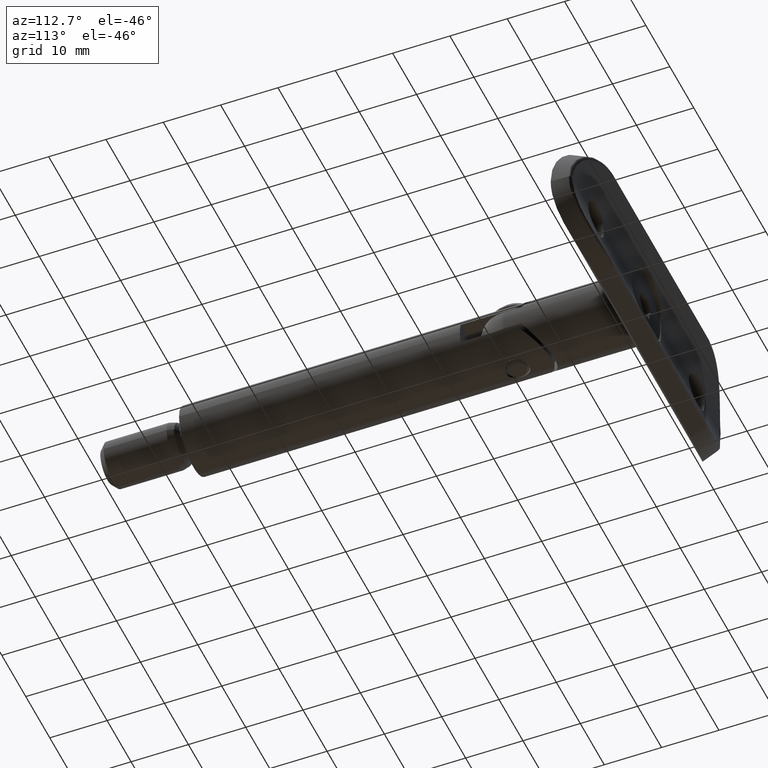
[diagram: clean part render]
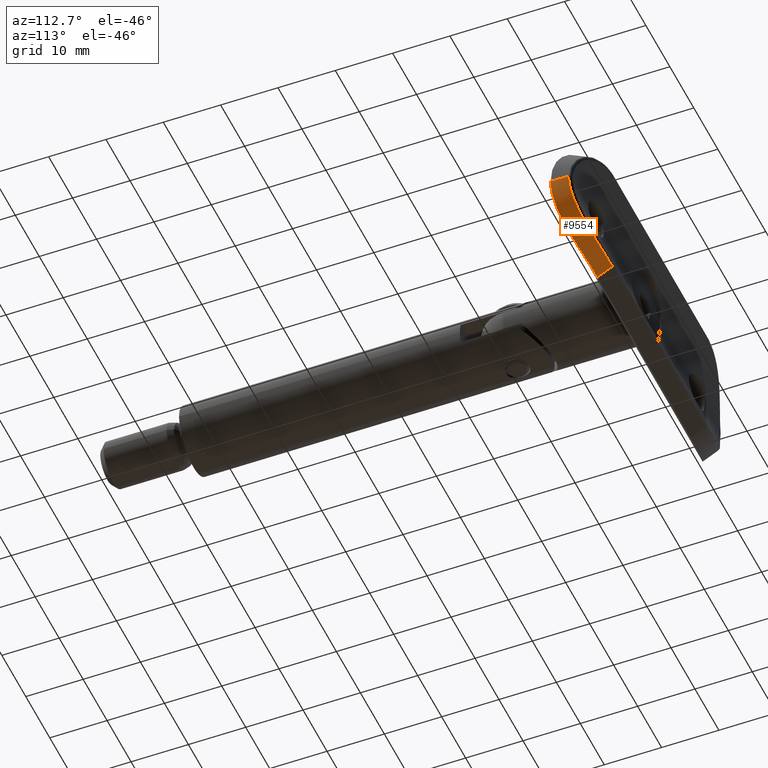
[diagram: same view with one face highlighted and labeled with its STEP entity id]
A machine part, auxiliary view. The second image highlights one B-rep face of the part: STEP entity #9554.
In plain terms, the highlighted cylindrical surface (partial cylindrical patch) has radius 12 mm, axis along (0, -0.8741, -0.4858).
Its self-contained STEP definition (entity closure, byte-faithful):
#51 = CARTESIAN_POINT ( 'NONE',  ( -8.732631405510836942, 1.380105572080482013, -26.13792390336022819 ) ) ;
#174 = CARTESIAN_POINT ( 'NONE',  ( -3.589126953104938345, -0.1425766935507997157, -30.53490663537369443 ) ) ;
#508 = CARTESIAN_POINT ( 'NONE',  ( -10.86687449944537320, -0.9833561896143341308, -24.95091473416315608 ) ) ;
#603 = EDGE_CURVE ( 'NONE', #6681, #3510, #830, .T. ) ;
#830 = B_SPLINE_CURVE_WITH_KNOTS ( 'NONE', 3,
 ( #1555, #12829, #12932, #12769, #2855, #14121, #2812, #508, #11573, #6658, #15321, #6920, #8195, #14395, #5557, #14232, #14282, #8084, #13193, #14445, #1870, #10683, #8030, #4526 ),
 .UNSPECIFIED., .F., .F.,
 ( 4, 2, 2, 2, 2, 2, 2, 2, 2, 2, 2, 4 ),
 ( 3.476216610979977084E-18, 0.002406580534152875320, 0.003609870801229310595, 0.004813161068305746304, 0.007219741602458626395, 0.008423031869535066440, 0.009626322136611503016, 0.01203290267076437096, 0.01443948320491723891, 0.01564277347199367202, 0.01684606373907010513, 0.01925264427322297828 ),
 .UNSPECIFIED. ) ;
#1073 = CARTESIAN_POINT ( 'NONE',  ( -4.165912745246785058E-15, -0.4701362392625519360, -31.40937530504016451 ) ) ;
#1191 = EDGE_LOOP ( 'NONE', ( #15433, #8881, #2384, #15524 ) ) ;
#1243 = CARTESIAN_POINT ( 'NONE',  ( -1.471476261503997573, -0.4031192296362751670, -31.17588060939954531 ) ) ;
#1415 = CARTESIAN_POINT ( 'NONE',  ( -0.7404109976856301234, -0.4496605161124934136, -31.31444628284844356 ) ) ;
#1555 = CARTESIAN_POINT ( 'NONE',  ( -12.00000000000000711, -0.3891176290278207661, -19.50000000000000355 ) ) ;
#1833 = CARTESIAN_POINT ( 'NONE',  ( -4.165912745246785058E-15, -0.4701362392625519360, -31.40937530504016451 ) ) ;
#1870 = CARTESIAN_POINT ( 'NONE',  ( -2.804642605329985106, -3.343479015047385428, -31.23668300403215170 ) ) ;
#2384 = ORIENTED_EDGE ( 'NONE', *, *, #6893, .T. ) ;
#2685 = CARTESIAN_POINT ( 'NONE',  ( -10.22228452745750360, 2.073518088803385950, -22.43040518664165006 ) ) ;
#2812 = CARTESIAN_POINT ( 'NONE',  ( -11.29067707203921067, -0.7689707214613790143, -23.83865606415823279 ) ) ;
#2855 = CARTESIAN_POINT ( 'NONE',  ( -11.62887820642736436, -0.5915967544966715952, -22.68293612948989946 ) ) ;
#3209 = VERTEX_POINT ( 'NONE', #7615 ) ;
#3499 = CARTESIAN_POINT ( 'NONE',  ( -12.00000000000000178, -0.3891176290278255956, -19.50000000000000000 ) ) ;
#3510 = VERTEX_POINT ( 'NONE', #13334 ) ;
#3539 = CARTESIAN_POINT ( 'NONE',  ( 10.48864014365724628, 15.37004048582994997, -19.50000000000000000 ) ) ;
#3754 = CARTESIAN_POINT ( 'NONE',  ( -5.507687913038745720, 0.2809070737397288409, -29.49489296990413578 ) ) ;
#3925 = CARTESIAN_POINT ( 'NONE',  ( -10.04062280470157731, 1.982199962630015744, -23.14366967859936253 ) ) ;
#3973 = CARTESIAN_POINT ( 'NONE',  ( -1.835189502875486767, -0.3711457551946608646, -31.09134747255644982 ) ) ;
#4112 = CYLINDRICAL_SURFACE ( 'NONE', #12550, 12.00000000000000000 ) ;
#4220 = CARTESIAN_POINT ( 'NONE',  ( -5.975428329596222389E-16, -3.499999999999999556, -31.50000000000000000 ) ) ;
#4526 = CARTESIAN_POINT ( 'NONE',  ( -5.975428329596222389E-16, -3.499999999999999556, -31.50000000000000000 ) ) ;
#4686 = DIRECTION ( 'NONE',  ( -0.4858299595141704619, -0.8740533453047700796, 0.000000000000000000 ) ) ;
#5068 = CARTESIAN_POINT ( 'NONE',  ( -2.905809991406905990, -0.2520860244392645333, -30.79258430663402279 ) ) ;
#5172 = CARTESIAN_POINT ( 'NONE',  ( -9.569349463060195404, 1.752852787617590780, -24.53899358220071747 ) ) ;
#5182 = VECTOR ( 'NONE', #5953, 1000.000000000000114 ) ;
#5233 = CARTESIAN_POINT ( 'NONE',  ( -0.3717157821171792609, -0.4643916539096182849, -31.36887278765310683 ) ) ;
#5472 = CARTESIAN_POINT ( 'NONE',  ( -3.269338926805214492E-15, -2.486856761535503946, -31.50000000000000000 ) ) ;
#5557 = CARTESIAN_POINT ( 'NONE',  ( -7.497033304171731416, -2.344925040722428022, -29.19690548182576251 ) ) ;
#5611 = EDGE_CURVE ( 'NONE', #3209, #7126, #14920, .T. ) ;
#5640 = CARTESIAN_POINT ( 'NONE',  ( -3.718901014066856788E-15, -1.475628161315674092, -31.46975366199063728 ) ) ;
#5953 = DIRECTION ( 'NONE',  ( -0.4858299595141704064, -0.8740533453047699686, -0.000000000000000000 ) ) ;
#6658 = CARTESIAN_POINT ( 'NONE',  ( -9.890151245574543282, -1.434654235787247600, -26.64699636764817114 ) ) ;
#6681 = VERTEX_POINT ( 'NONE', #10060 ) ;
#6893 = EDGE_CURVE ( 'NONE', #7126, #3510, #14852, .T. ) ;
#6920 = CARTESIAN_POINT ( 'NONE',  ( -9.174398946052685133, -1.734467328778706907, -27.58503671903728005 ) ) ;
#7126 = VERTEX_POINT ( 'NONE', #1073 ) ;
#7424 = FACE_OUTER_BOUND ( 'NONE', #1191, .T. ) ;
#7615 = CARTESIAN_POINT ( 'NONE',  ( -10.53971119023871772, 2.238077944829623078, -19.50000000000000000 ) ) ;
#7625 = CARTESIAN_POINT ( 'NONE',  ( -4.567942503128787024, 0.05582271291679522657, -30.05491169464929158 ) ) ;
#8030 = CARTESIAN_POINT ( 'NONE',  ( -0.8132883673673630964, -3.499999999999998668, -31.49999999999999289 ) ) ;
#8084 = CARTESIAN_POINT ( 'NONE',  ( -4.354802112542866865, -3.115994167807660808, -30.82274288943988338 ) ) ;
#8195 = CARTESIAN_POINT ( 'NONE',  ( -8.916507318172458341, -1.836285184458887887, -27.87664932174586241 ) ) ;
#8511 = DIRECTION ( 'NONE',  ( 0.8740533453047699686, -0.4858299595141704619, 0.000000000000000000 ) ) ;
#8733 = CARTESIAN_POINT ( 'NONE',  ( -10.53971119023871772, 2.238077944829623078, -19.50000000000000000 ) ) ;
#8791 = CARTESIAN_POINT ( 'NONE',  ( -8.538757616669148121, 1.298744972214026960, -26.44274779239511375 ) ) ;
#8881 = ORIENTED_EDGE ( 'NONE', *, *, #5611, .T. ) ;
#8894 = CARTESIAN_POINT ( 'NONE',  ( -9.269901498195489253, 1.612828249825284610, -25.19844563057117881 ) ) ;
#9554 = ADVANCED_FACE ( 'NONE', ( #7424 ), #4112, .T. ) ;
#10060 = CARTESIAN_POINT ( 'NONE',  ( -12.00000000000000711, -0.3891176290278207661, -19.50000000000000355 ) ) ;
#10136 = CARTESIAN_POINT ( 'NONE',  ( -10.29759581758889375, 2.112088555418218938, -22.07087987615993185 ) ) ;
#10237 = LINE ( 'NONE', #3499, #5182 ) ;
#10683 = CARTESIAN_POINT ( 'NONE',  ( -1.616414263079185121, -3.459901341102897820, -31.43731128375658912 ) ) ;
#11279 = CARTESIAN_POINT ( 'NONE',  ( -10.53971119023871239, 2.238077944829627075, -20.24777137648276337 ) ) ;
#11433 = CARTESIAN_POINT ( 'NONE',  ( -8.119630012388043383, 1.130367664769256431, -27.03523480616932062 ) ) ;
#11573 = CARTESIAN_POINT ( 'NONE',  ( -10.51842810678144957, -1.153150254458435775, -25.65304723848730717 ) ) ;
#12476 = CARTESIAN_POINT ( 'NONE',  ( -5.807837735107590937, 0.3617548896867360253, -29.28748829787575403 ) ) ;
#12550 = AXIS2_PLACEMENT_3D ( 'NONE', #3539, #4686, #8511 ) ;
#12580 = CARTESIAN_POINT ( 'NONE',  ( -10.47855176280993206, 2.205503992355606346, -20.98378448394305451 ) ) ;
#12645 = CARTESIAN_POINT ( 'NONE',  ( -7.186626295999050562, 0.7838569578975430607, -28.13755154511081003 ) ) ;
#12694 = CARTESIAN_POINT ( 'NONE',  ( -4.886493709250094852, 0.1276570117640421498, -29.87927491249998724 ) ) ;
#12769 = CARTESIAN_POINT ( 'NONE',  ( -11.71699478268041794, -0.5441595704861782457, -22.29309573292401581 ) ) ;
#12829 = CARTESIAN_POINT ( 'NONE',  ( -12.00000000000000178, -0.3891176290278237637, -20.31369584259641314 ) ) ;
#12932 = CARTESIAN_POINT ( 'NONE',  ( -11.92859548616417698, -0.4292482158758177402, -21.11347366024902783 ) ) ;
#13193 = CARTESIAN_POINT ( 'NONE',  ( -3.975921368411834411, -3.181057464200420792, -30.94410955837537003 ) ) ;
#13334 = CARTESIAN_POINT ( 'NONE',  ( -5.975428329596222389E-16, -3.499999999999999556, -31.50000000000000000 ) ) ;
#13883 = CARTESIAN_POINT ( 'NONE',  ( -4.165912745246785058E-15, -0.4701362392625519360, -31.40937530504016451 ) ) ;
#14121 = CARTESIAN_POINT ( 'NONE',  ( -11.41587513011002031, -0.7039332646957846551, -23.45570776623292986 ) ) ;
#14232 = CARTESIAN_POINT ( 'NONE',  ( -6.166834720918711099, -2.727790392386203688, -30.05461524013827557 ) ) ;
#14282 = CARTESIAN_POINT ( 'NONE',  ( -5.463922679457850151, -2.899855688073363691, -30.40472026188329124 ) ) ;
#14395 = CARTESIAN_POINT ( 'NONE',  ( -8.099404966363247027, -2.141546448550109449, -28.70539369568060195 ) ) ;
#14445 = CARTESIAN_POINT ( 'NONE',  ( -3.199605881044096822, -3.295028801910499627, -31.15149741152382745 ) ) ;
#14852 =( BOUNDED_CURVE ( )  B_SPLINE_CURVE ( 3, ( #1833, #5640, #5472, #4220 ),
 .UNSPECIFIED., .F., .F. ) 
 B_SPLINE_CURVE_WITH_KNOTS ( ( 4, 4 ),
 ( 1.447820046972164931, 1.570796326794896558 ),
 .UNSPECIFIED. ) 
 CURVE ( )  GEOMETRIC_REPRESENTATION_ITEM ( )  RATIONAL_B_SPLINE_CURVE ( ( 1.000000000000000000, 0.9987401332329099990, 0.9987401332329099990, 1.000000000000000000 ) ) 
 REPRESENTATION_ITEM ( '' )  );
#14920 = B_SPLINE_CURVE_WITH_KNOTS ( 'NONE', 3,
 ( #8733, #11279, #12580, #10136, #2685, #3925, #15031, #5172, #8894, #51, #8791, #11433, #15079, #12645, #15137, #12476, #3754, #12694, #7625, #174, #5068, #3973, #1243, #1415, #5233, #13883 ),
 .UNSPECIFIED., .F., .F.,
 ( 4, 2, 2, 2, 2, 2, 2, 2, 2, 2, 2, 2, 4 ),
 ( 0.000000000000000000, 0.002211687512370214773, 0.003317531268555321943, 0.004423375024740429547, 0.006635062537110645621, 0.007740906293295753658, 0.008846750049480862563, 0.01105843756185108037, 0.01216428131803618841, 0.01327012507422129645, 0.01548181258659150905, 0.01658765634277661882, 0.01769350009896172513 ),
 .UNSPECIFIED. ) ;
#15031 = CARTESIAN_POINT ( 'NONE',  ( -9.933564340798483272, 1.929111303165169211, -23.49922711695876743 ) ) ;
#15079 = CARTESIAN_POINT ( 'NONE',  ( -7.894751655761195863, 1.043563230655475405, -27.32195453554993847 ) ) ;
#15137 = CARTESIAN_POINT ( 'NONE',  ( -6.665760389367135552, 0.6098249306462666386, -28.62862387784112173 ) ) ;
#15321 = CARTESIAN_POINT ( 'NONE',  ( -9.661430124385194773, -1.533590909220056586, -26.97020615263073751 ) ) ;
#15433 = ORIENTED_EDGE ( 'NONE', *, *, #15577, .F. ) ;
#15524 = ORIENTED_EDGE ( 'NONE', *, *, #603, .F. ) ;
#15577 = EDGE_CURVE ( 'NONE', #3209, #6681, #10237, .T. ) ;